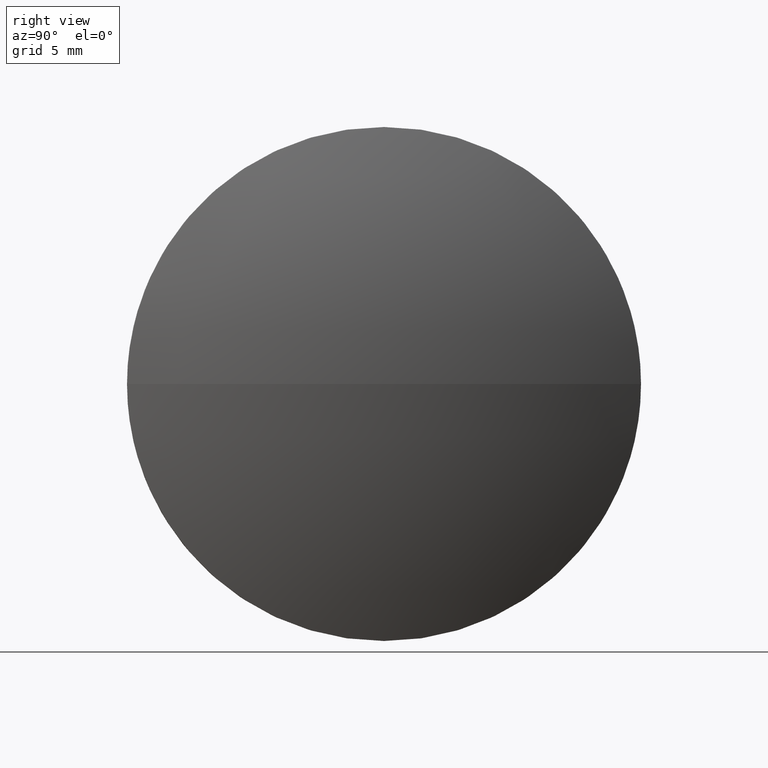
[diagram: clean part render]
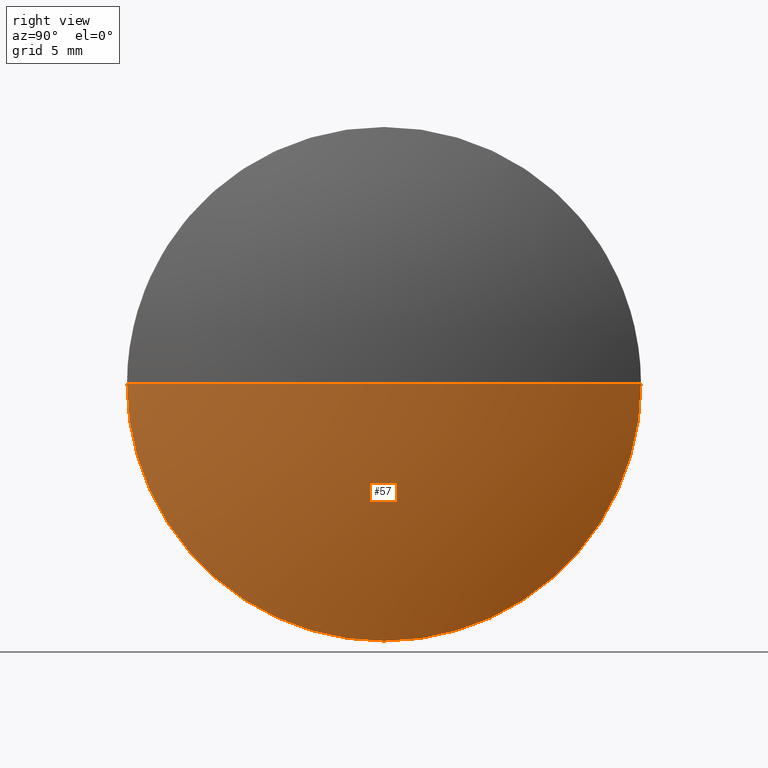
[diagram: same view with one face highlighted and labeled with its STEP entity id]
A machine part, right view. The second image highlights one B-rep face of the part: STEP entity #57.
In plain terms, the highlighted spherical surface has radius 50.3853 mm.
Its self-contained STEP definition (entity closure, byte-faithful):
#4 = VERTEX_POINT ( 'NONE', #48 ) ;
#5 = DIRECTION ( 'NONE',  ( -0.000000000000000000, 0.000000000000000000, 1.000000000000000000 ) ) ;
#7 = AXIS2_PLACEMENT_3D ( 'NONE', #155, #38, #40 ) ;
#11 = EDGE_CURVE ( 'NONE', #123, #4, #12, .T. ) ;
#12 = CIRCLE ( 'NONE', #74, 18.99524358284340764 ) ;
#21 = DIRECTION ( 'NONE',  ( -1.000000000000000000, -0.000000000000000000, -0.000000000000000000 ) ) ;
#22 = DIRECTION ( 'NONE',  ( 0.000000000000000000, 0.000000000000000000, 1.000000000000000000 ) ) ;
#23 = ORIENTED_EDGE ( 'NONE', *, *, #78, .T. ) ;
#38 = DIRECTION ( 'NONE',  ( -0.000000000000000000, 0.000000000000000000, -1.000000000000000000 ) ) ;
#39 = EDGE_CURVE ( 'NONE', #153, #152, #43, .T. ) ;
#40 = DIRECTION ( 'NONE',  ( 0.000000000000000000, 1.000000000000000000, 0.000000000000000000 ) ) ;
#43 = CIRCLE ( 'NONE', #89, 50.38527799999981482 ) ;
#44 = CARTESIAN_POINT ( 'NONE',  ( 2690.967891092362606, -224.9176971297049761, 0.000000000000000000 ) ) ;
#48 = CARTESIAN_POINT ( 'NONE',  ( 2690.967891092362606, -243.9129407125483340, -2.326246425275342567E-15 ) ) ;
#49 = CARTESIAN_POINT ( 'NONE',  ( 2644.300376048536691, -224.9176971297049761, 0.000000000000000000 ) ) ;
#54 = EDGE_CURVE ( 'NONE', #152, #123, #59, .T. ) ;
#57 = ADVANCED_FACE ( 'NONE', ( #138 ), #133, .T. ) ;
#58 = DIRECTION ( 'NONE',  ( 1.000000000000000000, 0.000000000000000000, 0.000000000000000000 ) ) ;
#59 = CIRCLE ( 'NONE', #102, 18.99524358284340764 ) ;
#74 = AXIS2_PLACEMENT_3D ( 'NONE', #44, #149, #22 ) ;
#78 = EDGE_CURVE ( 'NONE', #153, #4, #145, .T. ) ;
#79 = DIRECTION ( 'NONE',  ( 0.000000000000000000, 0.000000000000000000, 1.000000000000000000 ) ) ;
#89 = AXIS2_PLACEMENT_3D ( 'NONE', #136, #5, #58 ) ;
#102 = AXIS2_PLACEMENT_3D ( 'NONE', #121, #21, #79 ) ;
#106 = ORIENTED_EDGE ( 'NONE', *, *, #54, .F. ) ;
#115 = AXIS2_PLACEMENT_3D ( 'NONE', #49, #180, #165 ) ;
#121 = CARTESIAN_POINT ( 'NONE',  ( 2690.967891092362606, -224.9176971297049761, 0.000000000000000000 ) ) ;
#123 = VERTEX_POINT ( 'NONE', #183 ) ;
#125 = ORIENTED_EDGE ( 'NONE', *, *, #11, .F. ) ;
#130 = CARTESIAN_POINT ( 'NONE',  ( 2690.967891092362606, -205.9224535468616182, 0.000000000000000000 ) ) ;
#133 = SPHERICAL_SURFACE ( 'NONE', #7, 50.38527799999996404 ) ;
#136 = CARTESIAN_POINT ( 'NONE',  ( 2644.300376048536691, -224.9176971297049761, 0.000000000000000000 ) ) ;
#138 = FACE_OUTER_BOUND ( 'NONE', #164, .T. ) ;
#145 = CIRCLE ( 'NONE', #115, 50.38527799999994983 ) ;
#149 = DIRECTION ( 'NONE',  ( -1.000000000000000000, -0.000000000000000000, -0.000000000000000000 ) ) ;
#152 = VERTEX_POINT ( 'NONE', #130 ) ;
#153 = VERTEX_POINT ( 'NONE', #169 ) ;
#155 = CARTESIAN_POINT ( 'NONE',  ( 2644.300376048536691, -224.9176971297049761, 0.000000000000000000 ) ) ;
#164 = EDGE_LOOP ( 'NONE', ( #177, #23, #125, #106 ) ) ;
#165 = DIRECTION ( 'NONE',  ( 0.000000000000000000, 1.000000000000000000, 1.224646799147353700E-16 ) ) ;
#169 = CARTESIAN_POINT ( 'NONE',  ( 2694.685654048536435, -224.9176971297049761, 0.000000000000000000 ) ) ;
#177 = ORIENTED_EDGE ( 'NONE', *, *, #39, .F. ) ;
#180 = DIRECTION ( 'NONE',  ( 0.000000000000000000, 1.224646799147353207E-16, -1.000000000000000000 ) ) ;
#183 = CARTESIAN_POINT ( 'NONE',  ( 2690.967891092362606, -224.9176971297049761, -18.99524358284340764 ) ) ;